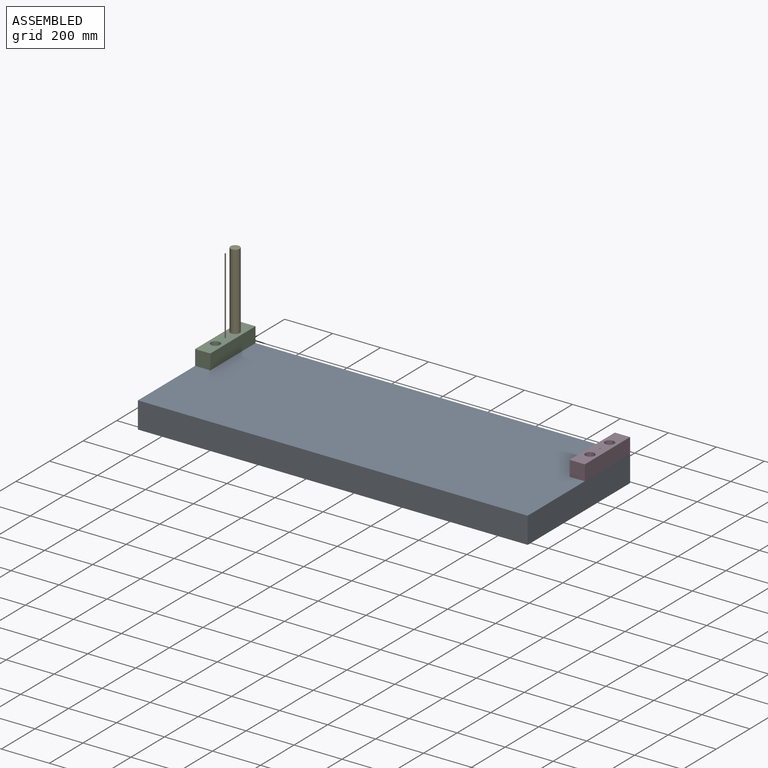
[diagram: assembled view]
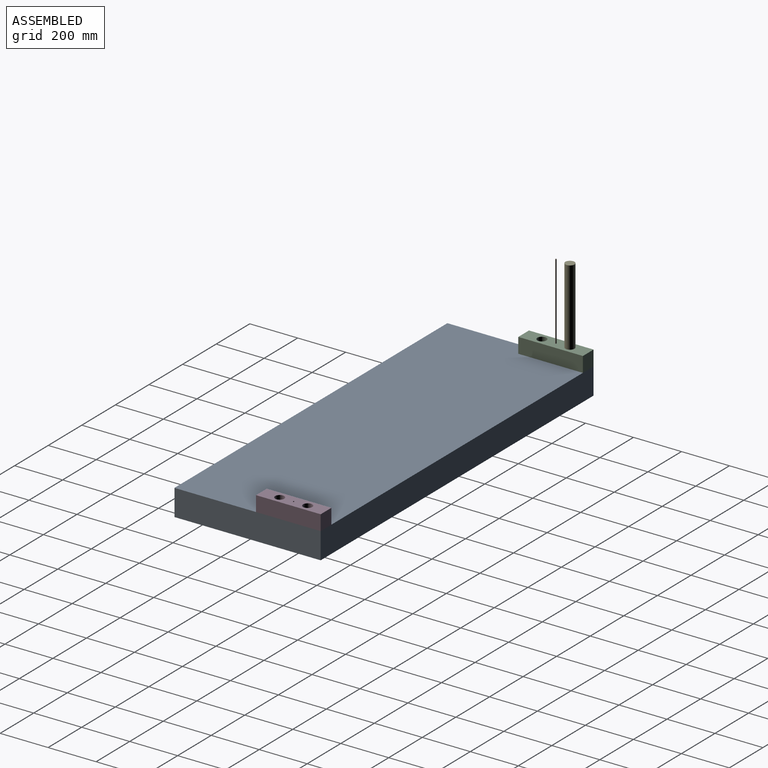
[diagram: assembled view, second angle]
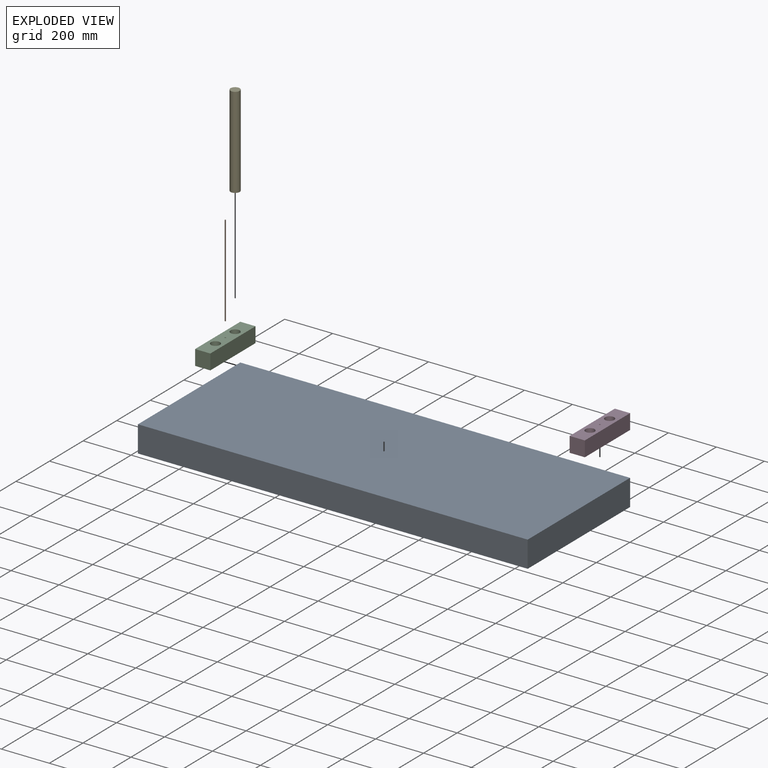
[diagram: exploded view]
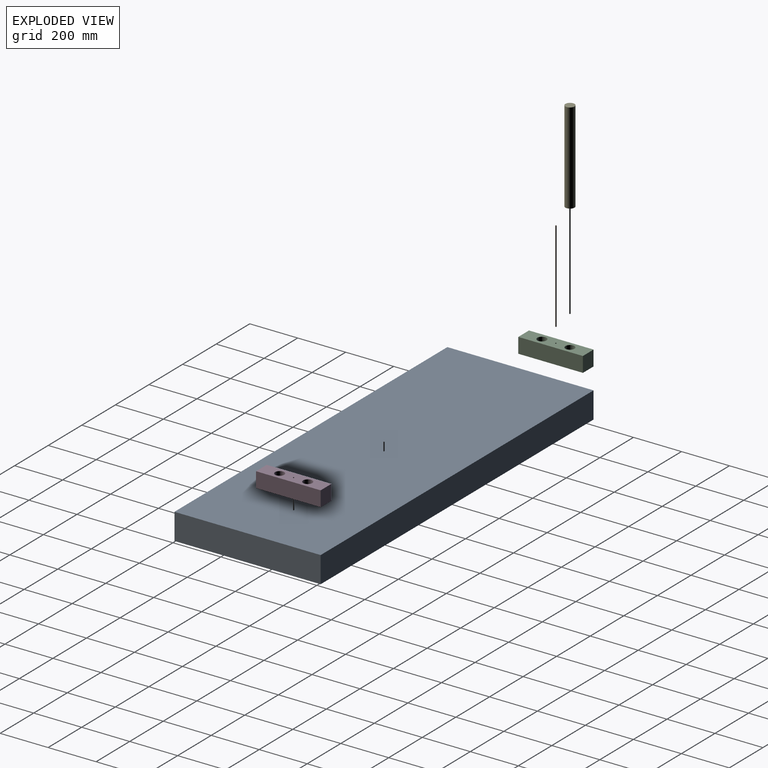
[diagram: exploded view, second angle]
ASSEMBLY  parts=5 mates=4
PART A: 6 faces, bbox 1625x609.6x109.9 mm
  f0: plane 1625x609.6mm, normal (0,0,1), area 990600mm2, adj f1,f3,f4,f5
  f1: plane 1625x109.92mm, normal (0,-1,0), area 178616mm2, adj f0,f2,f4,f5
  f2: plane 1625x609.6mm, normal (0,0,-1), area 990600mm2, adj f1,f3,f4,f5
  f3: plane 1625x109.92mm, normal (0,1,0), area 178616mm2, adj f0,f2,f4,f5
  f4: plane 609.6x109.92mm, normal (1,0,0), area 67005.7mm2, adj f0,f1,f2,f3
  f5: plane 609.6x109.92mm, normal (-1,0,0), area 67005.7mm2, adj f0,f1,f2,f3
PART B: 3 faces, bbox 5x5x381 mm
  f0: cylinder r=2.5mm len=381mm, axis (0,0,-1), area 5984.7mm2, adj f1,f2
  f1: plane 5x5mm, normal (0,0,1), area 19.6mm2, adj f0
  f2: plane 5x5mm, normal (0,0,-1), area 19.6mm2, adj f0
PART C: 9 faces, bbox 63.5x269.3x63.5 mm
  f0: plane 63.5x63.5mm, normal (0,-1,0), area 4032.2mm2, adj f1,f6,f7,f8
  f1: plane 269.3x63.5mm, normal (1,0,0), area 17100.5mm2, adj f0,f2,f7,f8
  f2: plane 63.5x63.5mm, normal (0,1,0), area 4032.2mm2, adj f1,f6,f7,f8
  f3: cylinder r=19.05mm len=63.5mm, axis (0,0,-1), area 7600.6mm2, adj f7,f8
  f4: cylinder r=3mm len=63.5mm, axis (0,0,-1), area 1196.9mm2, adj f7,f8
  f5: cylinder r=19.05mm len=63.5mm, axis (0,0,-1), area 7600.6mm2, adj f7,f8
  f6: plane 269.3x63.5mm, normal (-1,0,0), area 17100.5mm2, adj f0,f2,f7,f8
  f7: plane 269.3x63.5mm, normal (0,0,1), area 14792.1mm2, adj f0,f1,f2,f3,f4,f5,f6
  f8: plane 269.3x63.5mm, normal (0,0,-1), area 14792.1mm2, adj f0,f1,f2,f3,f4,f5,f6
PART D: same geometry as C
PART E: 3 faces, bbox 38.1x38.1x381 mm
  f0: cylinder r=19.05mm len=381mm, axis (0,0,-1), area 45603.7mm2, adj f1,f2
  f1: plane 38.1x38.1mm, normal (0,0,1), area 1140.1mm2, adj f0
  f2: plane 38.1x38.1mm, normal (0,0,-1), area 1140.1mm2, adj f0
PLACE A at identity fixed
PLACE B rot(axis=(0,0,-1),51deg) t=(326.5,-1742.54,-1200.64)mm
PLACE C t=(299.05,-1792.48,-1200.64)mm
PLACE D t=(1860.55,-1792.48,-1200.64)mm
PLACE E t=(202.27,-1356.39,-1200.64)mm
MATE fastened A.f0 <-> D.f8  axis (0,0,1) through (1625,-1606.15,-1200.64)mm
MATE fastened A.f0 <-> C.f8  axis (0,0,1) through (0,-1606.15,-1200.64)mm
MATE revolute B.f0 <-> C.f4  axis (0,0,1) through (31.75,-1740.8,-1200.64)mm
MATE fastened E.f0 <-> C.f3  axis (0,0,1) through (31.75,-1682.35,-1200.64)mm
